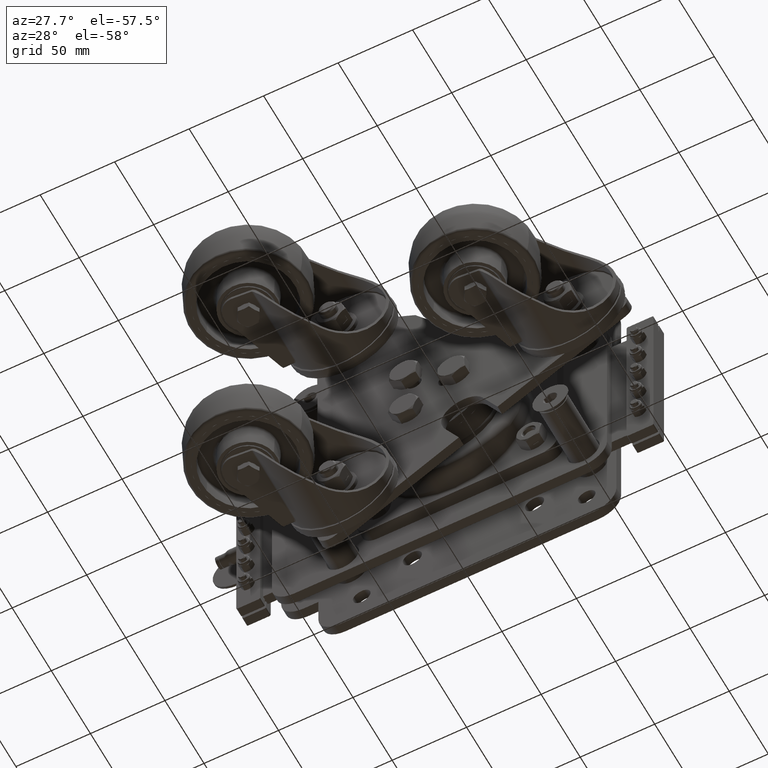
[diagram: clean part render]
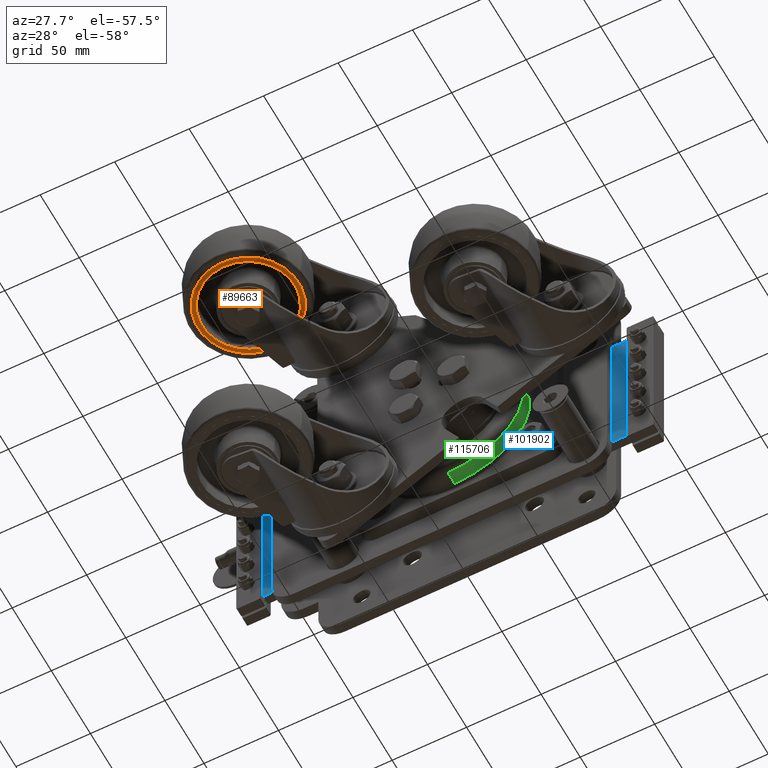
[diagram: same view with three faces highlighted in distinct colors, each labeled with its STEP entity id]
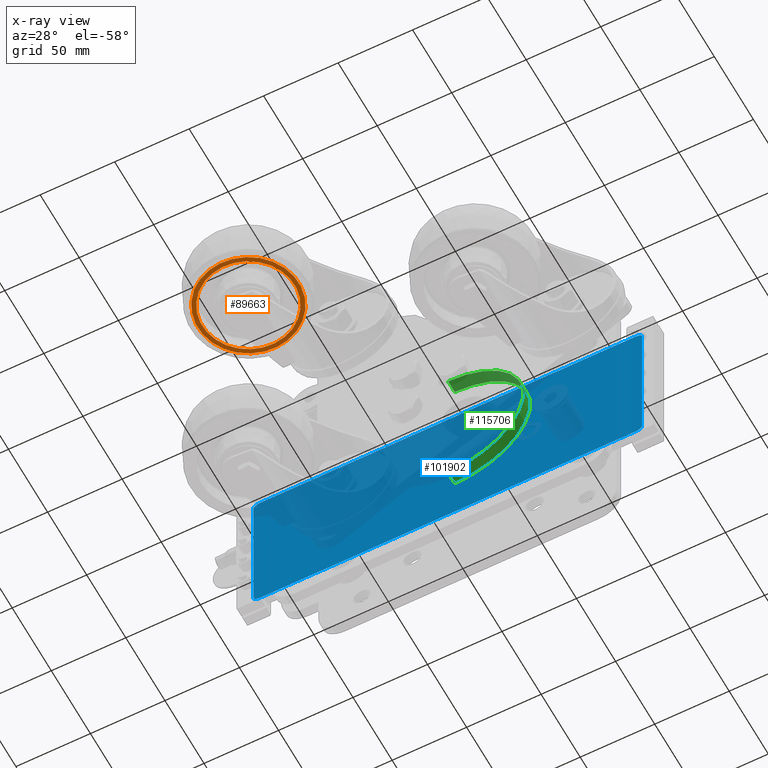
[diagram: x-ray of the same camera — body ghosted, the three highlighted faces saturated]
A machine part, auxiliary view with three faces highlighted in distinct colors.
The next image is the same camera in x-ray (body ghosted, the three faces saturated) — at least one of them is partly hidden behind the body in this view.
Their STEP definitions:

[orange] entity #89663 — the highlighted planar face has unit normal (0, 0, 1).
#4855 = CARTESIAN_POINT ( 'NONE',  ( -120.3086284067570517, -103.5393718807074777, 72.90157848412044927 ) ) ;
#10389 = DIRECTION ( 'NONE',  ( 1.313069427659014136E-17, 2.810106371523959248E-16, 1.000000000000000000 ) ) ;
#11142 = DIRECTION ( 'NONE',  ( -1.647987302177966740E-17, -3.015932226210038155E-16, -1.000000000000000000 ) ) ;
#12341 = DIRECTION ( 'NONE',  ( -1.647987302177966740E-17, -3.015932226210038155E-16, -1.000000000000000000 ) ) ;
#13766 = ORIENTED_EDGE ( 'NONE', *, *, #128859, .F. ) ;
#15506 = VERTEX_POINT ( 'NONE', #60370 ) ;
#20884 = PLANE ( 'NONE',  #106317 ) ;
#32265 = VERTEX_POINT ( 'NONE', #59980 ) ;
#33108 = FACE_BOUND ( 'NONE', #105737, .T. ) ;
#38468 = CIRCLE ( 'NONE', #125629, 30.99999999999999645 ) ;
#40004 = ORIENTED_EDGE ( 'NONE', *, *, #59249, .F. ) ;
#40793 = CARTESIAN_POINT ( 'NONE',  ( -86.75000000000015632, -109.0000000000000995, 72.90157848412044927 ) ) ;
#42415 = ORIENTED_EDGE ( 'NONE', *, *, #85302, .T. ) ;
#49266 = DIRECTION ( 'NONE',  ( -0.9870184825516733484, 0.1606067093909590571, 0.0000000000000000000 ) ) ;
#50332 = EDGE_CURVE ( 'NONE', #57094, #113177, #98250, .T. ) ;
#57094 = VERTEX_POINT ( 'NONE', #61074 ) ;
#59249 = EDGE_CURVE ( 'NONE', #15506, #32265, #38468, .T. ) ;
#59980 = CARTESIAN_POINT ( 'NONE',  ( -117.3475729591020240, -104.0211920088803765, 72.90157848412044927 ) ) ;
#60370 = CARTESIAN_POINT ( 'NONE',  ( -56.15242704089830283, -113.9788079911198224, 72.90157848412044927 ) ) ;
#61074 = CARTESIAN_POINT ( 'NONE',  ( -53.19137159324326802, -114.4606281192927071, 72.90157848412044927 ) ) ;
#65834 = DIRECTION ( 'NONE',  ( -0.9870184825516733484, 0.1606067093909590571, 0.0000000000000000000 ) ) ;
#70806 = ORIENTED_EDGE ( 'NONE', *, *, #50332, .T. ) ;
#72410 = FACE_OUTER_BOUND ( 'NONE', #107324, .T. ) ;
#80409 = AXIS2_PLACEMENT_3D ( 'NONE', #101257, #11142, #89924 ) ;
#85302 = EDGE_CURVE ( 'NONE', #113177, #57094, #124060, .T. ) ;
#87014 = AXIS2_PLACEMENT_3D ( 'NONE', #40793, #12341, #111682 ) ;
#89663 = ADVANCED_FACE ( 'NONE', ( #72410, #33108 ), #20884, .F. ) ;
#89924 = DIRECTION ( 'NONE',  ( -0.9870184825516733484, 0.1606067093909591681, 0.0000000000000000000 ) ) ;
#95592 = DIRECTION ( 'NONE',  ( -1.647987302177966740E-17, -3.015932226210038155E-16, -1.000000000000000000 ) ) ;
#98250 = CIRCLE ( 'NONE', #80409, 34.00000000000000711 ) ;
#99139 = CIRCLE ( 'NONE', #122303, 30.99999999999999645 ) ;
#101257 = CARTESIAN_POINT ( 'NONE',  ( -86.75000000000015632, -109.0000000000000995, 72.90157848412044927 ) ) ;
#105737 = EDGE_LOOP ( 'NONE', ( #13766, #40004 ) ) ;
#106317 = AXIS2_PLACEMENT_3D ( 'NONE', #119783, #10389, #121499 ) ;
#107324 = EDGE_LOOP ( 'NONE', ( #42415, #70806 ) ) ;
#109707 = DIRECTION ( 'NONE',  ( -1.647987302177966740E-17, -3.015932226210038155E-16, -1.000000000000000000 ) ) ;
#111682 = DIRECTION ( 'NONE',  ( -0.9870184825516733484, 0.1606067093909591681, 0.0000000000000000000 ) ) ;
#113177 = VERTEX_POINT ( 'NONE', #4855 ) ;
#119783 = CARTESIAN_POINT ( 'NONE',  ( -118.8281006829295592, -103.7802819447939413, 72.90157848412044927 ) ) ;
#120199 = CARTESIAN_POINT ( 'NONE',  ( -86.75000000000015632, -109.0000000000000995, 72.90157848412044927 ) ) ;
#121499 = DIRECTION ( 'NONE',  ( -0.1606067093909590571, -0.9870184825516733484, 2.794715702628185229E-16 ) ) ;
#122303 = AXIS2_PLACEMENT_3D ( 'NONE', #120199, #109707, #49266 ) ;
#124060 = CIRCLE ( 'NONE', #87014, 34.00000000000000711 ) ;
#125629 = AXIS2_PLACEMENT_3D ( 'NONE', #125796, #95592, #65834 ) ;
#125796 = CARTESIAN_POINT ( 'NONE',  ( -86.75000000000015632, -109.0000000000000995, 72.90157848412044927 ) ) ;
#128859 = EDGE_CURVE ( 'NONE', #32265, #15506, #99139, .T. ) ;

[blue] entity #101902 — the highlighted planar face has unit normal (0, 1, 0).
#1277 = CARTESIAN_POINT ( 'NONE',  ( -138.8416324790659360, 5.999999077488728183, -52.49999999999885603 ) ) ;
#1835 = ORIENTED_EDGE ( 'NONE', *, *, #52353, .T. ) ;
#4668 = EDGE_LOOP ( 'NONE', ( #129184, #76200, #86644, #33728, #60158, #55373, #116801, #1835 ) ) ;
#5248 = CARTESIAN_POINT ( 'NONE',  ( 114.4045291933680062, 5.999999999999971578, 52.23071520349226660 ) ) ;
#5386 = CARTESIAN_POINT ( 'NONE',  ( -143.6932081502571634, 6.000000000000002665, 49.63263068435205128 ) ) ;
#8952 = DIRECTION ( 'NONE',  ( 0.0000000000000000000, 0.0000000000000000000, -1.000000000000000000 ) ) ;
#9244 = EDGE_CURVE ( 'NONE', #13626, #101641, #52996, .T. ) ;
#10886 = CARTESIAN_POINT ( 'NONE',  ( -143.6932081502571350, 6.000000000000009770, -49.76504827971657363 ) ) ;
#12616 = CARTESIAN_POINT ( 'NONE',  ( -139.8831478970282944, 5.999999999999971578, -52.45190169448714101 ) ) ;
#13535 = B_SPLINE_CURVE_WITH_KNOTS ( 'NONE', 3,
 ( #34548, #14444, #15737, #105446, #124664, #95790, #64732, #45446, #115029, #65603, #125101, #5248, #55399, #85735, #83945, #24054 ),
 .UNSPECIFIED., .F., .F.,
 ( 4, 2, 2, 2, 2, 2, 2, 4 ),
 ( 0.0000000000000000000, 0.0007802970707665811802, 0.001560594141533162360, 0.002340891212299743215, 0.003121188283066324721, 0.003901485353832905793, 0.004681782424599486431, 0.006242376566132645105 ),
 .UNSPECIFIED. ) ;
#13626 = VERTEX_POINT ( 'NONE', #97960 ) ;
#13936 = CARTESIAN_POINT ( 'NONE',  ( 117.1261312109513852, 5.999999999999992006, -50.02041315039116398 ) ) ;
#14444 = CARTESIAN_POINT ( 'NONE',  ( 117.1932081502570497, 6.000000000000008882, 49.76504827971887579 ) ) ;
#15737 = CARTESIAN_POINT ( 'NONE',  ( 117.1385553433147066, 6.000000000000010658, 50.02062659866785310 ) ) ;
#15877 = CARTESIAN_POINT ( 'NONE',  ( -142.7530939638798486, 6.000000000000033751, 51.30472927861993071 ) ) ;
#17368 = DIRECTION ( 'NONE',  ( 1.000000000000000000, -0.0000000000000000000, 0.0000000000000000000 ) ) ;
#18207 = CARTESIAN_POINT ( 'NONE',  ( -138.8416324790659928, 5.999999077488425314, 52.50000000000115818 ) ) ;
#19615 = CARTESIAN_POINT ( 'NONE',  ( 113.3808522465824780, 6.000000000000012434, -52.45180988185673243 ) ) ;
#19847 = PLANE ( 'NONE',  #27872 ) ;
#20331 = CARTESIAN_POINT ( 'NONE',  ( -143.6932081502571066, 5.999999999999987566, -49.49999999999884892 ) ) ;
#20927 = CARTESIAN_POINT ( 'NONE',  ( 112.3416324790659928, 5.999999077488424426, -52.49999999999885603 ) ) ;
#20962 = CARTESIAN_POINT ( 'NONE',  ( -143.4360442045372110, 5.999999999999990230, -50.50838942164708101 ) ) ;
#22831 = CARTESIAN_POINT ( 'NONE',  ( -139.8808522465824922, 6.000000000000011546, 52.45180988185901327 ) ) ;
#23123 = EDGE_CURVE ( 'NONE', #23732, #13626, #107053, .T. ) ;
#23689 = VERTEX_POINT ( 'NONE', #20331 ) ;
#23732 = VERTEX_POINT ( 'NONE', #30371 ) ;
#24004 = CARTESIAN_POINT ( 'NONE',  ( 117.1794454065724551, 5.999999999999990230, -49.76318709911955551 ) ) ;
#24054 = CARTESIAN_POINT ( 'NONE',  ( 112.3416324790659928, 5.999999077488808119, 52.50000000000115818 ) ) ;
#24588 = DIRECTION ( 'NONE',  ( -0.0000000000000000000, -0.0000000000000000000, 1.000000000000000000 ) ) ;
#26283 = DIRECTION ( 'NONE',  ( -1.000000000000000000, 0.0000000000000000000, 0.0000000000000000000 ) ) ;
#27357 = CARTESIAN_POINT ( 'NONE',  ( 112.3416324790659928, 5.999999077488808119, 52.50000000000115818 ) ) ;
#27872 = AXIS2_PLACEMENT_3D ( 'NONE', #129668, #69748, #78499 ) ;
#29681 = CARTESIAN_POINT ( 'NONE',  ( 115.1320710107735579, 6.000000000000012434, -51.97589198876215022 ) ) ;
#30096 = CARTESIAN_POINT ( 'NONE',  ( 116.4481841063629730, 6.000000000000054179, -51.13079448035350083 ) ) ;
#30371 = CARTESIAN_POINT ( 'NONE',  ( 112.3416324790659928, 5.999999077488424426, -52.49999999999885603 ) ) ;
#30925 = LINE ( 'NONE', #58708, #98229 ) ;
#30994 = CARTESIAN_POINT ( 'NONE',  ( -142.7562663461708894, 5.999999999999950262, -51.30187520827963965 ) ) ;
#33728 = ORIENTED_EDGE ( 'NONE', *, *, #105413, .T. ) ;
#34252 = CARTESIAN_POINT ( 'NONE',  ( -143.6932081502571066, 5.999999999999974243, 49.50000000000115108 ) ) ;
#34548 = CARTESIAN_POINT ( 'NONE',  ( 117.1932081502570355, 5.999999999999987566, 49.50000000000115108 ) ) ;
#34694 = CARTESIAN_POINT ( 'NONE',  ( -141.6320710107736147, 5.999999999999989342, 51.97589198876444527 ) ) ;
#35269 = CARTESIAN_POINT ( 'NONE',  ( 117.1932081502570355, 5.999999999999987566, 49.50000000000115108 ) ) ;
#35546 = CARTESIAN_POINT ( 'NONE',  ( -142.9481841063631009, 6.000000000000095923, 51.13079448035581720 ) ) ;
#36196 = CARTESIAN_POINT ( 'NONE',  ( 111.7499999999999716, 5.999999999999990230, 52.50000000000115108 ) ) ;
#37123 = CARTESIAN_POINT ( 'NONE',  ( -138.8416324790659360, 5.999999077488728183, -52.49999999999885603 ) ) ;
#39710 = CARTESIAN_POINT ( 'NONE',  ( 115.8269751871512767, 6.000000000000032863, -51.61475326559671117 ) ) ;
#40142 = CARTESIAN_POINT ( 'NONE',  ( 116.9851047359221070, 5.999999999999970690, -50.38951076234953064 ) ) ;
#40572 = EDGE_CURVE ( 'NONE', #61738, #121500, #118881, .T. ) ;
#42348 = CARTESIAN_POINT ( 'NONE',  ( -142.1065249664131613, 6.000000000001117328, -51.74388669758409520 ) ) ;
#43526 = VERTEX_POINT ( 'NONE', #37123 ) ;
#44283 = CARTESIAN_POINT ( 'NONE',  ( -142.1015568962685336, 5.999999999999989342, 51.74672294822966023 ) ) ;
#45141 = CARTESIAN_POINT ( 'NONE',  ( -140.8905749694931728, 5.999999999999992006, 52.23465304761990780 ) ) ;
#45446 = CARTESIAN_POINT ( 'NONE',  ( 115.8344356103049790, 5.999999999999969802, 51.60985782885164497 ) ) ;
#49734 = CARTESIAN_POINT ( 'NONE',  ( 116.7039812050723668, 6.000000000000055067, -50.83342174660995028 ) ) ;
#51040 = CARTESIAN_POINT ( 'NONE',  ( -143.6932081502571066, 5.999999999999987566, -49.49999999999884892 ) ) ;
#52353 = EDGE_CURVE ( 'NONE', #23689, #43526, #106594, .T. ) ;
#52996 = LINE ( 'NONE', #103775, #125203 ) ;
#53171 = CARTESIAN_POINT ( 'NONE',  ( 117.1932081502570355, 5.999999999999987566, -49.49999999999884892 ) ) ;
#55120 = CARTESIAN_POINT ( 'NONE',  ( -143.2836552578138765, 6.000000000000014211, 50.72711949243276308 ) ) ;
#55373 = ORIENTED_EDGE ( 'NONE', *, *, #40572, .T. ) ;
#55399 = CARTESIAN_POINT ( 'NONE',  ( 114.1498171072765899, 6.000000000000012434, 52.29686242360011761 ) ) ;
#55546 = CARTESIAN_POINT ( 'NONE',  ( -143.4851047359222491, 5.999999999999951150, 50.38951076235185411 ) ) ;
#58708 = CARTESIAN_POINT ( 'NONE',  ( -143.6932081502571066, 5.999999999999987566, 1.150864383216410982E-12 ) ) ;
#59786 = CARTESIAN_POINT ( 'NONE',  ( 114.8862292416174711, 6.000000000000014211, -52.07333527455830335 ) ) ;
#60158 = ORIENTED_EDGE ( 'NONE', *, *, #97965, .F. ) ;
#61738 = VERTEX_POINT ( 'NONE', #76887 ) ;
#64732 = CARTESIAN_POINT ( 'NONE',  ( 116.2562663461708468, 5.999999999999970690, 51.30187520828196313 ) ) ;
#64881 = CARTESIAN_POINT ( 'NONE',  ( -142.3269751871513336, 6.000000000000033751, 51.61475326559902754 ) ) ;
#65119 = CARTESIAN_POINT ( 'NONE',  ( 117.1932081502570782, 6.000000000000000888, -49.63263068434972780 ) ) ;
#65603 = CARTESIAN_POINT ( 'NONE',  ( 115.1399133555508456, 6.000000000001118217, 51.97246399302804321 ) ) ;
#69748 = DIRECTION ( 'NONE',  ( 0.0000000000000000000, 1.000000000000000000, 0.0000000000000000000 ) ) ;
#71679 = CARTESIAN_POINT ( 'NONE',  ( -142.3344356103050927, 5.999999999999950262, -51.60985782884932860 ) ) ;
#72532 = CARTESIAN_POINT ( 'NONE',  ( -143.6385553433148061, 5.999999999999992006, -50.02062659866553673 ) ) ;
#74030 = CARTESIAN_POINT ( 'NONE',  ( -143.6932081502571066, 5.999999999999974243, 49.50000000000115108 ) ) ;
#76200 = ORIENTED_EDGE ( 'NONE', *, *, #23123, .T. ) ;
#76887 = CARTESIAN_POINT ( 'NONE',  ( -138.8416324790659928, 5.999999077488425314, 52.50000000000115818 ) ) ;
#78499 = DIRECTION ( 'NONE',  ( 0.0000000000000000000, -0.0000000000000000000, 1.000000000000000000 ) ) ;
#79572 = CARTESIAN_POINT ( 'NONE',  ( 112.8654484647027374, 5.999999999999981348, -52.49999999999886313 ) ) ;
#80031 = CARTESIAN_POINT ( 'NONE',  ( -139.3654484647028369, 5.999999999999981348, 52.50000000000115818 ) ) ;
#83945 = CARTESIAN_POINT ( 'NONE',  ( 112.8653145549451295, 6.000000000000001776, 52.50000000000114397 ) ) ;
#85735 = CARTESIAN_POINT ( 'NONE',  ( 113.3831478970282802, 6.000000000000010658, 52.45190169448942896 ) ) ;
#85864 = CARTESIAN_POINT ( 'NONE',  ( -143.2039812050724947, 6.000000000000095923, 50.83342174661227375 ) ) ;
#86644 = ORIENTED_EDGE ( 'NONE', *, *, #9244, .T. ) ;
#89013 = LINE ( 'NONE', #36196, #106258 ) ;
#89643 = CARTESIAN_POINT ( 'NONE',  ( 114.1399237282487462, 6.000000000000013323, -52.29913510745871008 ) ) ;
#90054 = CARTESIAN_POINT ( 'NONE',  ( 114.3905749694930591, 6.000000000000012434, -52.23465304761760564 ) ) ;
#90966 = CARTESIAN_POINT ( 'NONE',  ( -142.9505283636159163, 6.000000000000033751, -51.12870782754340127 ) ) ;
#92704 = CARTESIAN_POINT ( 'NONE',  ( -139.3653145549451722, 6.000000000000002665, -52.49999999999884892 ) ) ;
#93563 = EDGE_CURVE ( 'NONE', #23732, #43526, #115461, .T. ) ;
#95501 = CARTESIAN_POINT ( 'NONE',  ( -143.5860563984822136, 5.999999999999949374, 50.14776299254526037 ) ) ;
#95790 = CARTESIAN_POINT ( 'NONE',  ( 116.4505283636159021, 6.000000000000032863, 51.12870782754574606 ) ) ;
#95937 = CARTESIAN_POINT ( 'NONE',  ( -140.6399237282487604, 6.000000000000012434, 52.29913510746104066 ) ) ;
#97960 = CARTESIAN_POINT ( 'NONE',  ( 117.1932081502570355, 5.999999999999987566, -49.49999999999884892 ) ) ;
#97965 = EDGE_CURVE ( 'NONE', #61738, #120250, #89013, .T. ) ;
#98229 = VECTOR ( 'NONE', #8952, 1000.000000000000000 ) ;
#99673 = CARTESIAN_POINT ( 'NONE',  ( 115.6015568962685194, 6.000000000000014211, -51.74672294822735807 ) ) ;
#101641 = VERTEX_POINT ( 'NONE', #35269 ) ;
#101902 = ADVANCED_FACE ( 'NONE', ( #105660 ), #19847, .F. ) ;
#102310 = CARTESIAN_POINT ( 'NONE',  ( -143.2929740331839810, 6.000000000000033751, -50.72931455509196752 ) ) ;
#102921 = VECTOR ( 'NONE', #26283, 1000.000000000000000 ) ;
#103775 = CARTESIAN_POINT ( 'NONE',  ( 117.1932081502570355, 5.999999999999987566, 1.150864383216410982E-12 ) ) ;
#104276 = CARTESIAN_POINT ( 'NONE',  ( -143.6261312109515131, 6.000000000000035527, 50.02041315039345193 ) ) ;
#105413 = EDGE_CURVE ( 'NONE', #101641, #120250, #13535, .T. ) ;
#105446 = CARTESIAN_POINT ( 'NONE',  ( 116.9360442045371400, 6.000000000000013323, 50.50838942164941159 ) ) ;
#105660 = FACE_OUTER_BOUND ( 'NONE', #4668, .T. ) ;
#106258 = VECTOR ( 'NONE', #17368, 1000.000000000000000 ) ;
#106594 = B_SPLINE_CURVE_WITH_KNOTS ( 'NONE', 3,
 ( #51040, #10886, #72532, #20962, #102310, #90966, #30994, #71679, #42348, #111080, #121151, #112373, #121587, #12616, #92704, #1277 ),
 .UNSPECIFIED., .F., .F.,
 ( 4, 2, 2, 2, 2, 2, 2, 4 ),
 ( 0.0000000000000000000, 0.0007802970707665800960, 0.001560594141533160192, 0.002340891212299740613, 0.003121188283066320384, 0.003901485353832900588, 0.004681782424599481227, 0.006242376566132645105 ),
 .UNSPECIFIED. ) ;
#107053 = B_SPLINE_CURVE_WITH_KNOTS ( 'NONE', 3,
 ( #20927, #79572, #19615, #89643, #90054, #59786, #29681, #99673, #39710, #109757, #30096, #49734, #119823, #129869, #40142, #125046, #13936, #24004, #65119, #53171 ),
 .UNSPECIFIED., .F., .F.,
 ( 4, 2, 2, 2, 2, 2, 2, 2, 2, 4 ),
 ( 0.0000000000000000000, 0.001548037165348866264, 0.002322055748023278687, 0.003096074330697691328, 0.003870092913372103535, 0.004644111496046515741, 0.005031120787383729434, 0.005418130078720943994, 0.005805139370058156820, 0.006192148661395371380 ),
 .UNSPECIFIED. ) ;
#109757 = CARTESIAN_POINT ( 'NONE',  ( 116.2530939638798060, 6.000000000000034639, -51.30472927861762855 ) ) ;
#111080 = CARTESIAN_POINT ( 'NONE',  ( -141.6399133555509025, 6.000000000001119105, -51.97246399302575526 ) ) ;
#111172 = EDGE_CURVE ( 'NONE', #121500, #23689, #30925, .T. ) ;
#112373 = CARTESIAN_POINT ( 'NONE',  ( -140.9045291933680630, 5.999999999999971578, -52.23071520348997865 ) ) ;
#114305 = CARTESIAN_POINT ( 'NONE',  ( -143.6794454065726256, 6.000000000000033751, 49.76318709912185767 ) ) ;
#115029 = CARTESIAN_POINT ( 'NONE',  ( 115.6065249664130050, 6.000000000001113776, 51.74388669758637604 ) ) ;
#115170 = CARTESIAN_POINT ( 'NONE',  ( -141.3862292416174853, 5.999999999999989342, 52.07333527456058420 ) ) ;
#115461 = LINE ( 'NONE', #126042, #102921 ) ;
#116801 = ORIENTED_EDGE ( 'NONE', *, *, #111172, .T. ) ;
#118881 = B_SPLINE_CURVE_WITH_KNOTS ( 'NONE', 3,
 ( #18207, #80031, #22831, #95937, #45141, #115170, #34694, #44283, #64881, #15877, #35546, #85864, #55120, #125247, #55546, #95501, #104276, #114305, #5386, #34252 ),
 .UNSPECIFIED., .F., .F.,
 ( 4, 2, 2, 2, 2, 2, 2, 2, 2, 4 ),
 ( 0.0000000000000000000, 0.001548037165348880358, 0.002322055748023277386, 0.003096074330697674848, 0.003870092913372071876, 0.004644111496046469771, 0.005031120787383695607, 0.005418130078720921443, 0.005805139370058146411, 0.006192148661395371380 ),
 .UNSPECIFIED. ) ;
#119823 = CARTESIAN_POINT ( 'NONE',  ( 116.7836552578137912, 6.000000000000033751, -50.72711949243045382 ) ) ;
#120250 = VERTEX_POINT ( 'NONE', #27357 ) ;
#121151 = CARTESIAN_POINT ( 'NONE',  ( -141.3989773794111215, 5.999999999999972466, -52.06854897309190733 ) ) ;
#121500 = VERTEX_POINT ( 'NONE', #74030 ) ;
#121587 = CARTESIAN_POINT ( 'NONE',  ( -140.6498171072765899, 5.999999999999972466, -52.29686242359785098 ) ) ;
#124664 = CARTESIAN_POINT ( 'NONE',  ( 116.7929740331838957, 6.000000000000031974, 50.72931455509428389 ) ) ;
#125046 = CARTESIAN_POINT ( 'NONE',  ( 117.0860563984821994, 5.999999999999973355, -50.14776299254297953 ) ) ;
#125101 = CARTESIAN_POINT ( 'NONE',  ( 114.8989773794110363, 5.999999999999971578, 52.06854897309420238 ) ) ;
#125203 = VECTOR ( 'NONE', #24588, 1000.000000000000000 ) ;
#125247 = CARTESIAN_POINT ( 'NONE',  ( -143.4241160754955331, 6.000000000000013323, 50.50512782654064381 ) ) ;
#126042 = CARTESIAN_POINT ( 'NONE',  ( -138.2500000000000284, 5.999999999999990230, -52.49999999999884892 ) ) ;
#129184 = ORIENTED_EDGE ( 'NONE', *, *, #93563, .F. ) ;
#129668 = CARTESIAN_POINT ( 'NONE',  ( -13.25000000000002487, 5.999999999999990230, 1.150864383216410982E-12 ) ) ;
#129869 = CARTESIAN_POINT ( 'NONE',  ( 116.9241160754954052, 6.000000000000031974, -50.50512782653829191 ) ) ;

[green] entity #115706 — the highlighted cylindrical surface (partial cylindrical patch) has radius 50.5 mm, axis along (-0, 1, 0).
#2377 = VERTEX_POINT ( 'NONE', #70921 ) ;
#3701 = EDGE_CURVE ( 'NONE', #2377, #96177, #119354, .T. ) ;
#5770 = DIRECTION ( 'NONE',  ( 0.0000000000000000000, 0.0000000000000000000, 1.000000000000000000 ) ) ;
#8067 = EDGE_CURVE ( 'NONE', #57112, #91354, #114204, .T. ) ;
#9979 = CARTESIAN_POINT ( 'NONE',  ( 6.184466335694133659E-15, -10.50000000000000000, -50.50000000000000000 ) ) ;
#14585 = ORIENTED_EDGE ( 'NONE', *, *, #70901, .T. ) ;
#27951 = FACE_OUTER_BOUND ( 'NONE', #112329, .T. ) ;
#29211 = CARTESIAN_POINT ( 'NONE',  ( 6.184466335694133659E-15, -19.00000000000000000, -50.50000000000000000 ) ) ;
#32213 = DIRECTION ( 'NONE',  ( -0.0000000000000000000, 1.000000000000000000, -0.0000000000000000000 ) ) ;
#32534 = AXIS2_PLACEMENT_3D ( 'NONE', #123903, #84058, #5770 ) ;
#32654 = DIRECTION ( 'NONE',  ( 0.0000000000000000000, 0.0000000000000000000, -1.000000000000000000 ) ) ;
#33938 = AXIS2_PLACEMENT_3D ( 'NONE', #122514, #101064, #41121 ) ;
#41121 = DIRECTION ( 'NONE',  ( 0.0000000000000000000, 0.0000000000000000000, 1.000000000000000000 ) ) ;
#43338 = EDGE_CURVE ( 'NONE', #2377, #91354, #86397, .T. ) ;
#50816 = ORIENTED_EDGE ( 'NONE', *, *, #8067, .T. ) ;
#57112 = VERTEX_POINT ( 'NONE', #9979 ) ;
#61329 = VECTOR ( 'NONE', #73907, 1000.000000000000000 ) ;
#67439 = AXIS2_PLACEMENT_3D ( 'NONE', #121080, #32213, #32654 ) ;
#70901 = EDGE_CURVE ( 'NONE', #96177, #57112, #87949, .T. ) ;
#70921 = CARTESIAN_POINT ( 'NONE',  ( 0.0000000000000000000, -19.00000000000000000, 50.50000000000000000 ) ) ;
#73552 = ORIENTED_EDGE ( 'NONE', *, *, #43338, .F. ) ;
#73907 = DIRECTION ( 'NONE',  ( -0.0000000000000000000, 1.000000000000000000, 0.0000000000000000000 ) ) ;
#78147 = DIRECTION ( 'NONE',  ( -0.0000000000000000000, 1.000000000000000000, 0.0000000000000000000 ) ) ;
#84058 = DIRECTION ( 'NONE',  ( -0.0000000000000000000, 1.000000000000000000, 0.0000000000000000000 ) ) ;
#86397 = LINE ( 'NONE', #105006, #61329 ) ;
#87949 = LINE ( 'NONE', #127604, #125496 ) ;
#91354 = VERTEX_POINT ( 'NONE', #109737 ) ;
#96177 = VERTEX_POINT ( 'NONE', #29211 ) ;
#101064 = DIRECTION ( 'NONE',  ( -0.0000000000000000000, -1.000000000000000000, -0.0000000000000000000 ) ) ;
#105006 = CARTESIAN_POINT ( 'NONE',  ( 0.0000000000000000000, -24.00000000000000000, 50.50000000000000000 ) ) ;
#109412 = CYLINDRICAL_SURFACE ( 'NONE', #32534, 50.50000000000000000 ) ;
#109737 = CARTESIAN_POINT ( 'NONE',  ( 0.0000000000000000000, -10.50000000000000000, 50.50000000000000000 ) ) ;
#112329 = EDGE_LOOP ( 'NONE', ( #129002, #14585, #50816, #73552 ) ) ;
#114204 = CIRCLE ( 'NONE', #33938, 50.50000000000000000 ) ;
#115706 = ADVANCED_FACE ( 'NONE', ( #27951 ), #109412, .T. ) ;
#119354 = CIRCLE ( 'NONE', #67439, 50.50000000000000000 ) ;
#121080 = CARTESIAN_POINT ( 'NONE',  ( 0.0000000000000000000, -19.00000000000000000, 0.0000000000000000000 ) ) ;
#122514 = CARTESIAN_POINT ( 'NONE',  ( 0.0000000000000000000, -10.50000000000000000, 0.0000000000000000000 ) ) ;
#123903 = CARTESIAN_POINT ( 'NONE',  ( 0.0000000000000000000, -24.00000000000000000, 0.0000000000000000000 ) ) ;
#125496 = VECTOR ( 'NONE', #78147, 1000.000000000000000 ) ;
#127604 = CARTESIAN_POINT ( 'NONE',  ( 6.184466335694133659E-15, -24.00000000000000000, -50.50000000000000000 ) ) ;
#129002 = ORIENTED_EDGE ( 'NONE', *, *, #3701, .T. ) ;